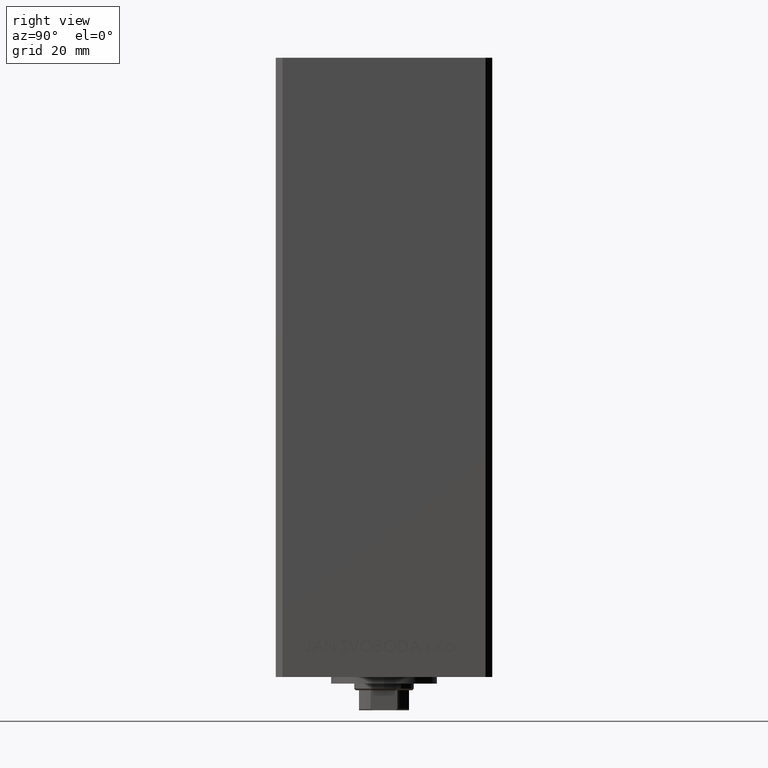
[diagram: clean part render]
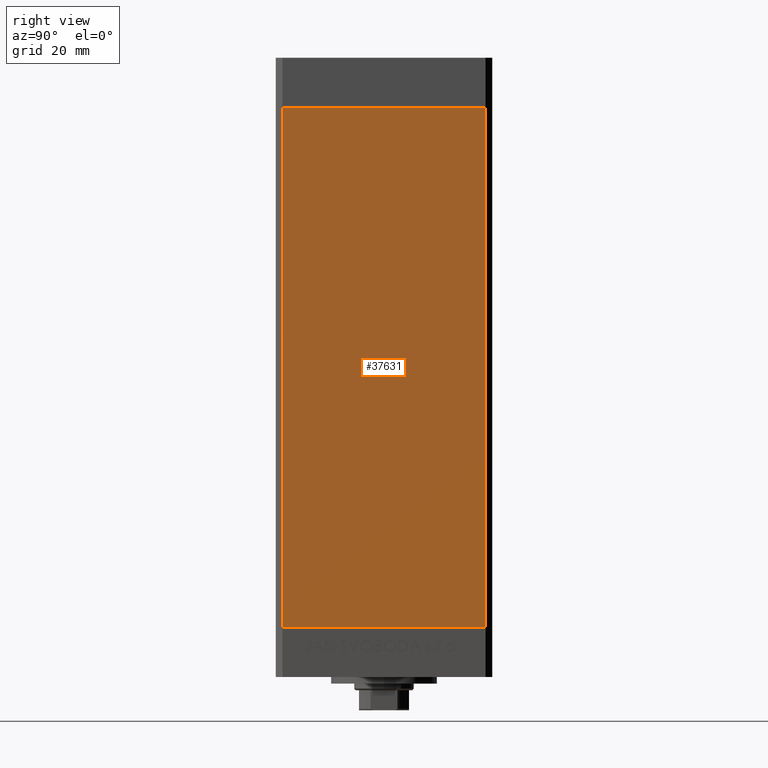
[diagram: same view with one face highlighted and labeled with its STEP entity id]
A machine part, right view. The second image highlights one B-rep face of the part: STEP entity #37631.
In plain terms, the highlighted planar face has unit normal (1, -0, 0).
Its self-contained STEP definition (entity closure, byte-faithful):
#1304 = CARTESIAN_POINT ( 'NONE',  ( 37.50000000000000711, 30.50000000000000000, 0.000000000000000000 ) ) ;
#3992 = CARTESIAN_POINT ( 'NONE',  ( 37.50000000000000711, 30.50000000000000000, 156.0000000000000000 ) ) ;
#5849 = ORIENTED_EDGE ( 'NONE', *, *, #28779, .T. ) ;
#6012 = VERTEX_POINT ( 'NONE', #18455 ) ;
#7394 = VECTOR ( 'NONE', #39825, 1000.000000000000000 ) ;
#8904 = DIRECTION ( 'NONE',  ( -2.275047181608927644E-16, -1.000000000000000000, 0.000000000000000000 ) ) ;
#10152 = LINE ( 'NONE', #12941, #7394 ) ;
#12520 = DIRECTION ( 'NONE',  ( 2.275047181608927644E-16, 1.000000000000000000, 0.000000000000000000 ) ) ;
#12941 = CARTESIAN_POINT ( 'NONE',  ( 37.50000000000000711, 30.50000000000000000, 156.0000000000000000 ) ) ;
#14414 = AXIS2_PLACEMENT_3D ( 'NONE', #3992, #38412, #12520 ) ;
#16065 = DIRECTION ( 'NONE',  ( -2.275047181608927644E-16, -1.000000000000000000, 0.000000000000000000 ) ) ;
#18455 = CARTESIAN_POINT ( 'NONE',  ( 37.49999999999999289, -30.50000000000000000, 0.000000000000000000 ) ) ;
#21078 = CARTESIAN_POINT ( 'NONE',  ( 37.49999999999999289, -30.50000000000000000, 156.0000000000000000 ) ) ;
#21839 = PLANE ( 'NONE',  #14414 ) ;
#21897 = EDGE_LOOP ( 'NONE', ( #23761, #44823, #5849, #46393 ) ) ;
#23761 = ORIENTED_EDGE ( 'NONE', *, *, #42913, .F. ) ;
#25015 = VECTOR ( 'NONE', #16065, 1000.000000000000000 ) ;
#25598 = FACE_OUTER_BOUND ( 'NONE', #21897, .T. ) ;
#25635 = VECTOR ( 'NONE', #36424, 1000.000000000000000 ) ;
#27367 = CARTESIAN_POINT ( 'NONE',  ( 37.50000000000000711, 30.50000000000000000, 0.000000000000000000 ) ) ;
#28779 = EDGE_CURVE ( 'NONE', #36782, #32234, #43340, .T. ) ;
#32234 = VERTEX_POINT ( 'NONE', #32850 ) ;
#32478 = VECTOR ( 'NONE', #8904, 1000.000000000000000 ) ;
#32850 = CARTESIAN_POINT ( 'NONE',  ( 37.49999999999999289, -30.50000000000000000, 156.0000000000000000 ) ) ;
#36424 = DIRECTION ( 'NONE',  ( -0.000000000000000000, -0.000000000000000000, -1.000000000000000000 ) ) ;
#36782 = VERTEX_POINT ( 'NONE', #38650 ) ;
#37505 = EDGE_CURVE ( 'NONE', #32234, #6012, #40193, .T. ) ;
#37631 = ADVANCED_FACE ( 'NONE', ( #25598 ), #21839, .T. ) ;
#38412 = DIRECTION ( 'NONE',  ( 1.000000000000000000, -2.275047181608927644E-16, 0.000000000000000000 ) ) ;
#38650 = CARTESIAN_POINT ( 'NONE',  ( 37.50000000000000711, 30.50000000000000000, 156.0000000000000000 ) ) ;
#39825 = DIRECTION ( 'NONE',  ( -0.000000000000000000, -0.000000000000000000, -1.000000000000000000 ) ) ;
#40193 = LINE ( 'NONE', #21078, #25635 ) ;
#42913 = EDGE_CURVE ( 'NONE', #43899, #6012, #46984, .T. ) ;
#43340 = LINE ( 'NONE', #43591, #32478 ) ;
#43591 = CARTESIAN_POINT ( 'NONE',  ( 37.50000000000000711, 30.50000000000000000, 156.0000000000000000 ) ) ;
#43899 = VERTEX_POINT ( 'NONE', #1304 ) ;
#44823 = ORIENTED_EDGE ( 'NONE', *, *, #47276, .F. ) ;
#46393 = ORIENTED_EDGE ( 'NONE', *, *, #37505, .T. ) ;
#46984 = LINE ( 'NONE', #27367, #25015 ) ;
#47276 = EDGE_CURVE ( 'NONE', #36782, #43899, #10152, .T. ) ;